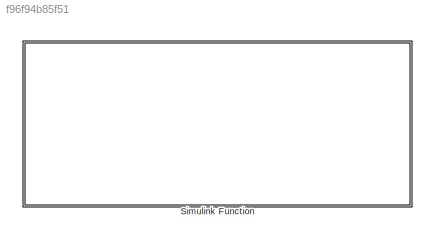
MODEL slx_f96f94b85f51
KIND model
CONFIG AbsTol = auto
CONFIG EnableMultiTasking = off
CONFIG FixedStep = 0.001
CONFIG MaxStep = auto
CONFIG MinStep = auto
CONFIG RelTol = 1e-3
CONFIG SampleTimeConstraint = Unconstrained
CONFIG SolverName = FixedStepDiscrete
CONFIG StartTime = 0.0
CONFIG StopTime = 10.0
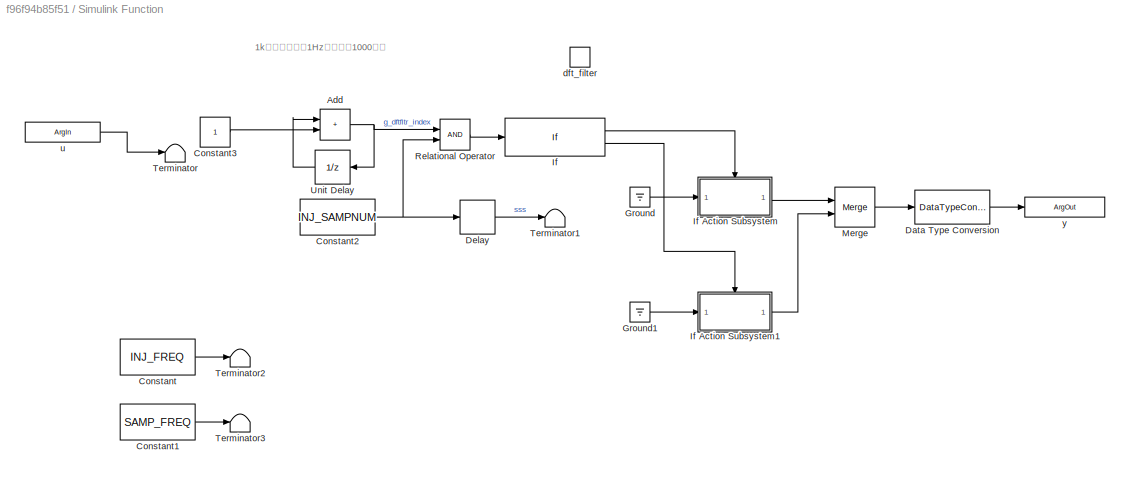
BLOCK [SubSystem] Simulink Function
  Ports = [0, 0, 0, 1]
  RequestExecContextInheritance = off
  TreatAsAtomicUnit = on
BLOCK [Sum] Simulink Function/Add
  IconShape = rectangular
  Ports = [2, 1]
BLOCK [Constant] Simulink Function/Constant
  Value = INJ_FREQ
BLOCK [Constant] Simulink Function/Constant1
  Value = SAMP_FREQ
BLOCK [Constant] Simulink Function/Constant2
  Value = INJ_SAMPNUM
BLOCK [Constant] Simulink Function/Constant3
  OutDataTypeStr = uint16
BLOCK [DataTypeConversion] Simulink Function/Data Type Conversion
  RndMeth = Floor
  SaturateOnIntegerOverflow = off
BLOCK [Delay] Simulink Function/Delay
  DelayLength = 1
  InitialCondition = 0
  InputPortMap = u0
  Ports = [1, 1]
BLOCK [Ground] Simulink Function/Ground
BLOCK [Ground] Simulink Function/Ground1
BLOCK [If] Simulink Function/If
  IfExpression = u1 ~= 0
  Ports = [1, 2]
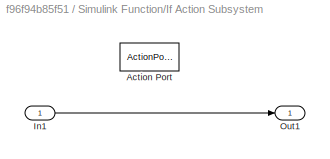
BLOCK [SubSystem] Simulink Function/If Action Subsystem
  Ports = [1, 1, 0, 0, 0, 0, 0, 1]
  RequestExecContextInheritance = off
  TreatAsAtomicUnit = on
BLOCK [ActionPort] Simulink Function/If Action Subsystem/Action Port
  ActionPortLabel = if(u1 ~= 0)
BLOCK [Inport] Simulink Function/If Action Subsystem/In1
BLOCK [Outport] Simulink Function/If Action Subsystem/Out1
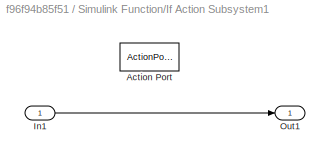
BLOCK [SubSystem] Simulink Function/If Action Subsystem1
  Ports = [1, 1, 0, 0, 0, 0, 0, 1]
  RequestExecContextInheritance = off
  TreatAsAtomicUnit = on
BLOCK [ActionPort] Simulink Function/If Action Subsystem1/Action Port
  ActionPortLabel = else
BLOCK [Inport] Simulink Function/If Action Subsystem1/In1
BLOCK [Outport] Simulink Function/If Action Subsystem1/Out1
BLOCK [Merge] Simulink Function/Merge
  Ports = [2, 1]
BLOCK [RelationalOperator] Simulink Function/Relational Operator
  InputSameDT = off
  OutDataTypeStr = boolean
  Ports = [2, 1]
  RndMeth = Simplest
BLOCK [Terminator] Simulink Function/Terminator
BLOCK [Terminator] Simulink Function/Terminator1
BLOCK [Terminator] Simulink Function/Terminator2
BLOCK [Terminator] Simulink Function/Terminator3
BLOCK [UnitDelay] Simulink Function/Unit Delay
  HasFrameUpgradeWarning = on
  NameLocation = top
  SampleTime = -1
BLOCK [TriggerPort] Simulink Function/dft_filter
  FunctionName = dft_filter_cal
  IsSimulinkFunction = on
  Ports = []
  StatesWhenEnabling = held
  TriggerType = function-call
  VariantControl = (inherit)
BLOCK [ArgIn] Simulink Function/u
  ArgumentName = signal_in
  DisableCoverage = on
  OutDataTypeStr = single
BLOCK [ArgOut] Simulink Function/y
  ArgumentName = amp_out
  DisableCoverage = on
  OutDataTypeStr = single
ANNOTATION Simulink Function: 1k采样频率抽取1Hz周期需要1000个点
NET Simulink Function/Add:1 -> Simulink Function/Relational Operator:1, Simulink Function/Unit Delay:1
LINE Simulink Function/Constant1:1 -> Simulink Function/Terminator3:1
NET Simulink Function/Constant2:1 -> Simulink Function/Delay:1, Simulink Function/Relational Operator:2
LINE Simulink Function/Constant3:1 -> Simulink Function/Add:2
LINE Simulink Function/Constant:1 -> Simulink Function/Terminator2:1
LINE Simulink Function/Data Type Conversion:1 -> Simulink Function/y:1
LINE Simulink Function/Delay:1 -> Simulink Function/Terminator1:1
LINE Simulink Function/Ground1:1 -> Simulink Function/If Action Subsystem1:1
LINE Simulink Function/Ground:1 -> Simulink Function/If Action Subsystem:1
LINE Simulink Function/If Action Subsystem/In1:1 -> Simulink Function/If Action Subsystem/Out1:1
LINE Simulink Function/If Action Subsystem1/In1:1 -> Simulink Function/If Action Subsystem1/Out1:1
LINE Simulink Function/If Action Subsystem1:1 -> Simulink Function/Merge:2
LINE Simulink Function/If Action Subsystem:1 -> Simulink Function/Merge:1
LINE Simulink Function/If:1 -> Simulink Function/If Action Subsystem:ifaction
LINE Simulink Function/If:2 -> Simulink Function/If Action Subsystem1:ifaction
LINE Simulink Function/Merge:1 -> Simulink Function/Data Type Conversion:1
LINE Simulink Function/Relational Operator:1 -> Simulink Function/If:1
LINE Simulink Function/Unit Delay:1 -> Simulink Function/Add:1
LINE Simulink Function/u:1 -> Simulink Function/Terminator:1
note: NET lines group one-source signal fan-out (src -> all destinations, sorted); 1:1 wires keep LINE
